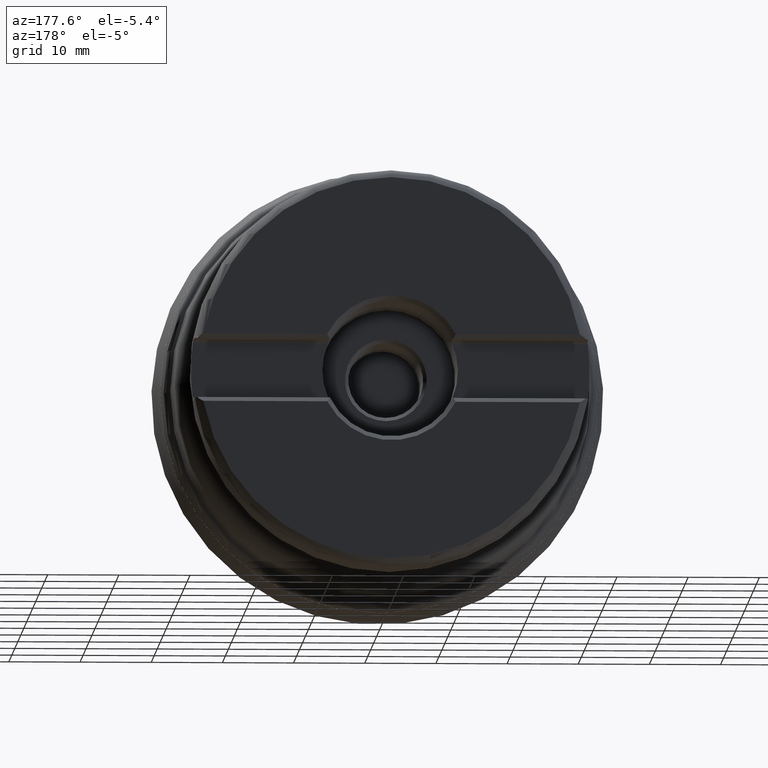
[diagram: clean part render]
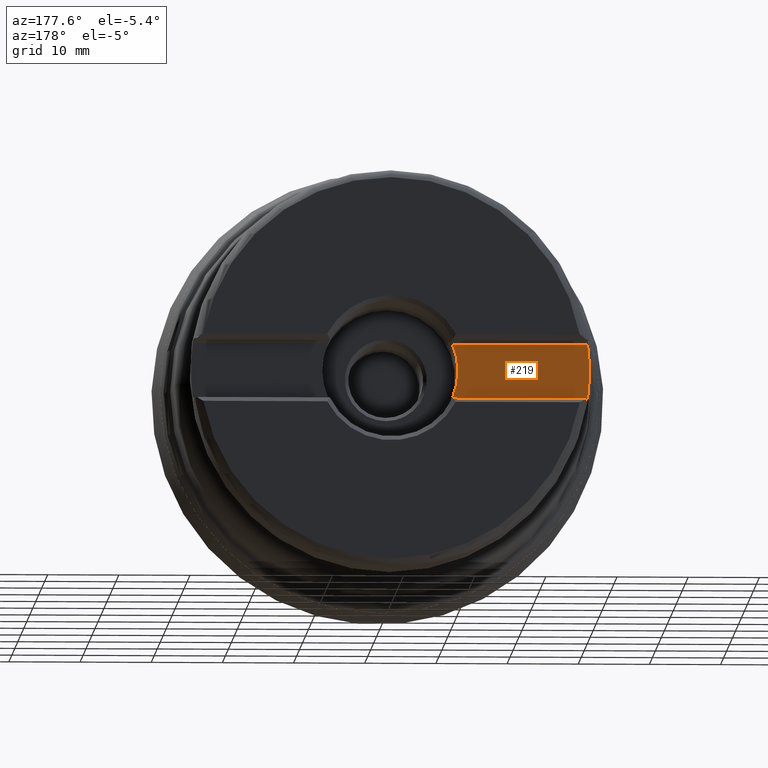
[diagram: same view with one face highlighted and labeled with its STEP entity id]
A machine part, auxiliary view. The second image highlights one B-rep face of the part: STEP entity #219.
In plain terms, the highlighted planar face has unit normal (0, 1, 0).
Its self-contained STEP definition (entity closure, byte-faithful):
#155=PLANE('',#1123);
#191=FACE_OUTER_BOUND('',#505,.T.);
#219=ADVANCED_FACE('',(#191),#155,.T.);
#349=LINE('',#1656,#377);
#350=LINE('',#1660,#378);
#377=VECTOR('',#1252,1.);
#378=VECTOR('',#1255,1.);
#505=EDGE_LOOP('',(#644,#645,#646,#647));
#644=ORIENTED_EDGE('',*,*,#935,.T.);
#645=ORIENTED_EDGE('',*,*,#959,.T.);
#646=ORIENTED_EDGE('',*,*,#960,.F.);
#647=ORIENTED_EDGE('',*,*,#961,.T.);
#844=VERTEX_POINT('',#1499);
#845=VERTEX_POINT('',#1501);
#866=VERTEX_POINT('',#1657);
#867=VERTEX_POINT('',#1659);
#935=EDGE_CURVE('',#845,#844,#1045,.T.);
#959=EDGE_CURVE('',#844,#866,#349,.T.);
#960=EDGE_CURVE('',#867,#866,#1056,.T.);
#961=EDGE_CURVE('',#867,#845,#350,.T.);
#1045=CIRCLE('',#1105,28.);
#1056=CIRCLE('',#1122,9.525);
#1105=AXIS2_PLACEMENT_3D('',#1500,#1216,#1217);
#1122=AXIS2_PLACEMENT_3D('',#1658,#1253,#1254);
#1123=AXIS2_PLACEMENT_3D('',#1661,#1256,#1257);
#1216=DIRECTION('',(0.,1.,0.));
#1217=DIRECTION('',(0.,0.,1.));
#1252=DIRECTION('',(1.,0.,0.));
#1253=DIRECTION('',(0.,1.,0.));
#1254=DIRECTION('',(0.,0.,1.));
#1255=DIRECTION('',(-1.,0.,0.));
#1256=DIRECTION('',(0.,1.,0.));
#1257=DIRECTION('',(0.,0.,1.));
#1499=CARTESIAN_POINT('',(-27.744357534461,45.25,3.775));
#1500=CARTESIAN_POINT('',(0.,45.25,0.));
#1501=CARTESIAN_POINT('',(-27.744357534461,45.25,-3.77500000000001));
#1656=CARTESIAN_POINT('',(35.5,45.25,3.775));
#1657=CARTESIAN_POINT('',(-8.74499857061166,45.25,3.775));
#1658=CARTESIAN_POINT('',(0.,45.25,0.));
#1659=CARTESIAN_POINT('',(-8.74499857061166,45.25,-3.77500000000001));
#1660=CARTESIAN_POINT('',(35.5,45.25,-3.77500000000001));
#1661=CARTESIAN_POINT('',(35.5,45.25,4.175));